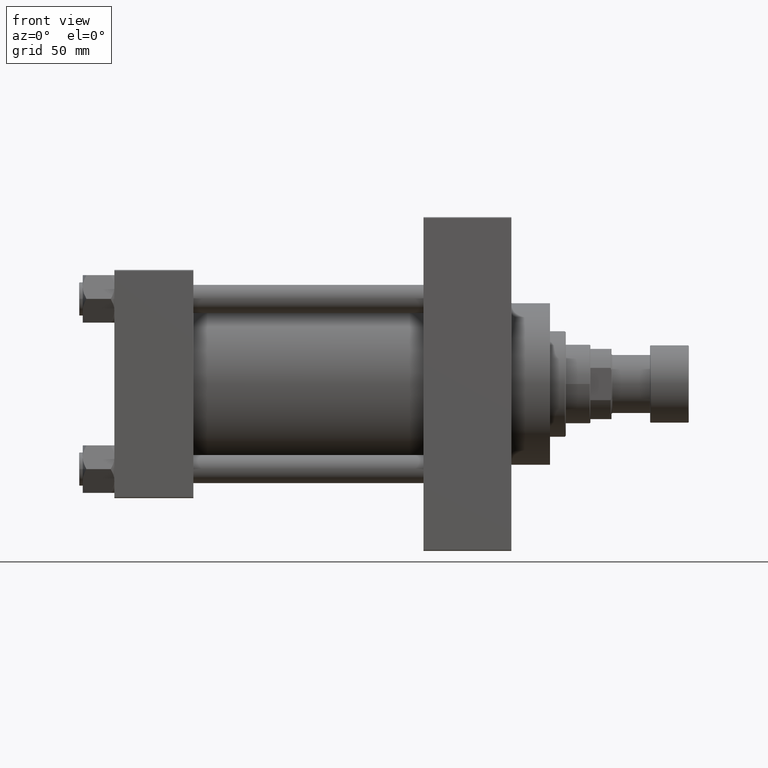
[diagram: clean part render]
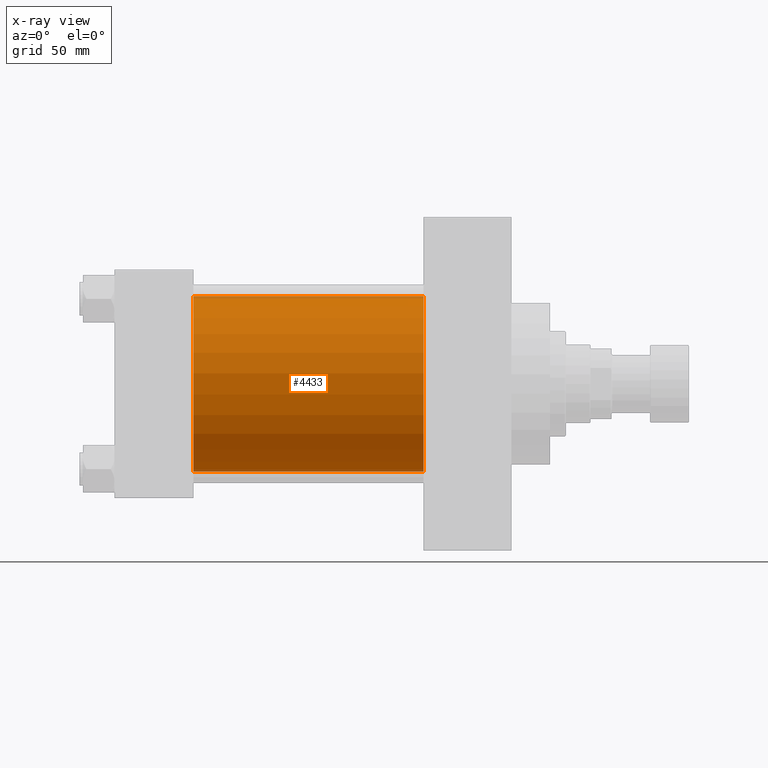
[diagram: x-ray — body ghosted, one internal face saturated and labeled with its STEP entity id]
A machine part, front view, then the same camera in x-ray: the body is ghosted and one INTERNAL B-rep face — a face not visible from any outside direction — is saturated and labeled: STEP entity #4433.
In plain terms, the highlighted cylindrical surface (partial cylindrical patch) has radius 50 mm, axis along (-1, -0, -0).
Its self-contained STEP definition (entity closure, byte-faithful):
#439 = DIRECTION ( 'NONE',  ( -1.000000000000000000, -0.000000000000000000, -0.000000000000000000 ) ) ;
#1859 = AXIS2_PLACEMENT_3D ( 'NONE', #13678, #6399, #28077 ) ;
#3314 = EDGE_LOOP ( 'NONE', ( #37761, #7847, #20001, #9741 ) ) ;
#4433 = ADVANCED_FACE ( 'NONE', ( #17130 ), #24915, .F. ) ;
#5456 = VERTEX_POINT ( 'NONE', #20500 ) ;
#5838 = CARTESIAN_POINT ( 'NONE',  ( 176.0000000000000000, 3.521148781771555838E-15, -50.00000000000000000 ) ) ;
#6399 = DIRECTION ( 'NONE',  ( 1.000000000000000000, 0.000000000000000000, 0.000000000000000000 ) ) ;
#7331 = VERTEX_POINT ( 'NONE', #10098 ) ;
#7404 = DIRECTION ( 'NONE',  ( 0.000000000000000000, 0.000000000000000000, -1.000000000000000000 ) ) ;
#7847 = ORIENTED_EDGE ( 'NONE', *, *, #31123, .T. ) ;
#9296 = VERTEX_POINT ( 'NONE', #32266 ) ;
#9741 = ORIENTED_EDGE ( 'NONE', *, *, #30196, .F. ) ;
#10098 = CARTESIAN_POINT ( 'NONE',  ( 176.0000000000000000, -2.602085213965210642E-15, 50.00000000000000000 ) ) ;
#10572 = CARTESIAN_POINT ( 'NONE',  ( 45.00000000000000000, -2.602085213965210642E-15, 0.000000000000000000 ) ) ;
#11418 = EDGE_CURVE ( 'NONE', #7331, #5456, #36816, .T. ) ;
#12596 = EDGE_CURVE ( 'NONE', #9296, #21259, #29871, .T. ) ;
#12754 = AXIS2_PLACEMENT_3D ( 'NONE', #10572, #25685, #7404 ) ;
#13678 = CARTESIAN_POINT ( 'NONE',  ( 176.0000000000000000, -2.602085213965210642E-15, 0.000000000000000000 ) ) ;
#16236 = DIRECTION ( 'NONE',  ( -1.000000000000000000, -0.000000000000000000, -0.000000000000000000 ) ) ;
#17130 = FACE_OUTER_BOUND ( 'NONE', #3314, .T. ) ;
#18603 = VECTOR ( 'NONE', #439, 1000.000000000000000 ) ;
#20001 = ORIENTED_EDGE ( 'NONE', *, *, #12596, .F. ) ;
#20500 = CARTESIAN_POINT ( 'NONE',  ( 176.0000000000000000, 3.521148781771555838E-15, -50.00000000000000000 ) ) ;
#21259 = VERTEX_POINT ( 'NONE', #40128 ) ;
#24337 = LINE ( 'NONE', #5838, #18603 ) ;
#24731 = LINE ( 'NONE', #39551, #37985 ) ;
#24915 = CYLINDRICAL_SURFACE ( 'NONE', #34251, 50.00000000000000000 ) ;
#25634 = DIRECTION ( 'NONE',  ( 0.000000000000000000, 0.000000000000000000, 1.000000000000000000 ) ) ;
#25685 = DIRECTION ( 'NONE',  ( 1.000000000000000000, 0.000000000000000000, 0.000000000000000000 ) ) ;
#28077 = DIRECTION ( 'NONE',  ( 0.000000000000000000, 0.000000000000000000, -1.000000000000000000 ) ) ;
#29871 = CIRCLE ( 'NONE', #12754, 50.00000000000000000 ) ;
#30196 = EDGE_CURVE ( 'NONE', #7331, #9296, #24731, .T. ) ;
#31123 = EDGE_CURVE ( 'NONE', #5456, #21259, #24337, .T. ) ;
#32266 = CARTESIAN_POINT ( 'NONE',  ( 45.00000000000000000, -2.602085213965210642E-15, 50.00000000000000000 ) ) ;
#32915 = DIRECTION ( 'NONE',  ( -1.000000000000000000, -0.000000000000000000, -0.000000000000000000 ) ) ;
#34251 = AXIS2_PLACEMENT_3D ( 'NONE', #39485, #32915, #25634 ) ;
#36816 = CIRCLE ( 'NONE', #1859, 50.00000000000000000 ) ;
#37761 = ORIENTED_EDGE ( 'NONE', *, *, #11418, .T. ) ;
#37985 = VECTOR ( 'NONE', #16236, 1000.000000000000000 ) ;
#39485 = CARTESIAN_POINT ( 'NONE',  ( 176.0000000000000000, -2.602085213965210642E-15, 0.000000000000000000 ) ) ;
#39551 = CARTESIAN_POINT ( 'NONE',  ( 176.0000000000000000, -2.602085213965210642E-15, 50.00000000000000000 ) ) ;
#40128 = CARTESIAN_POINT ( 'NONE',  ( 45.00000000000000000, 3.521148781771555838E-15, -50.00000000000000000 ) ) ;